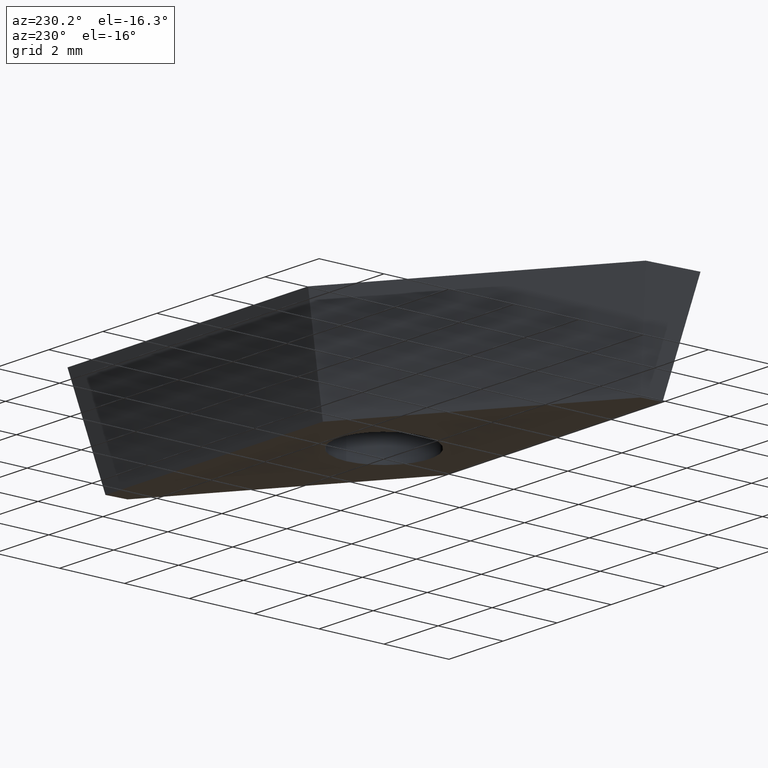
[diagram: clean part render]
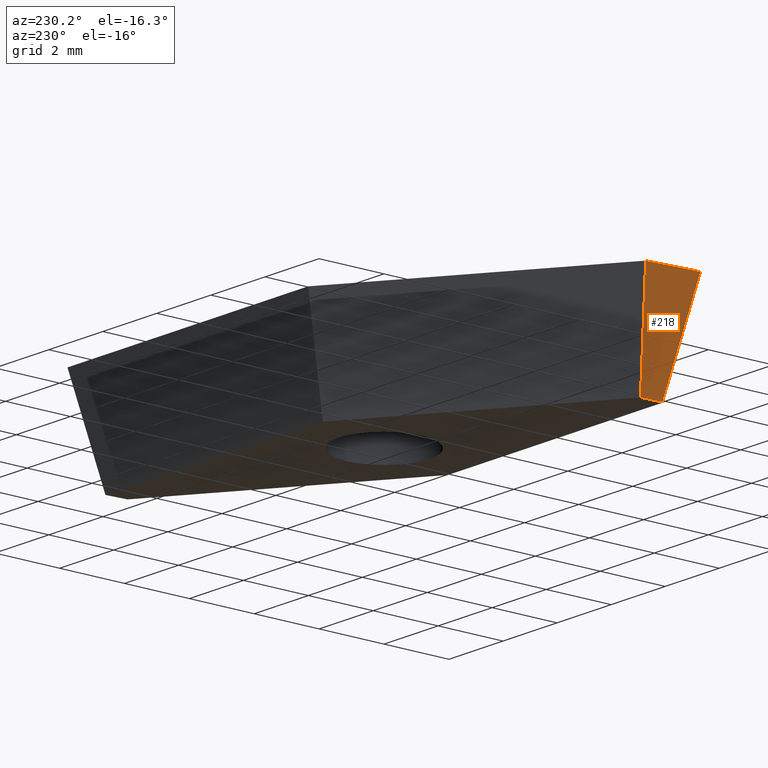
[diagram: same view with one face highlighted and labeled with its STEP entity id]
A machine part, auxiliary view. The second image highlights one B-rep face of the part: STEP entity #218.
In plain terms, the highlighted planar face has unit normal (-0.9792, 0.0685, -0.1908).
Its self-contained STEP definition (entity closure, byte-faithful):
#5 = VECTOR ( 'NONE', #65, 1000.000000000000100 ) ;
#27 = LINE ( 'NONE', #67, #5 ) ;
#30 = VECTOR ( 'NONE', #148, 1000.000000000000100 ) ;
#36 = CARTESIAN_POINT ( 'NONE',  ( -7.788289079147451900, -1.577459403657731600, 0.0000000000000000000 ) ) ;
#44 = LINE ( 'NONE', #90, #30 ) ;
#65 = DIRECTION ( 'NONE',  ( -0.1832382521941805800, 0.1036712150141736000, 0.9775868360970839700 ) ) ;
#66 = VECTOR ( 'NONE', #78, 1000.000000000000000 ) ;
#67 = CARTESIAN_POINT ( 'NONE',  ( -7.788289079147451900, -1.577459403657731600, 0.0000000000000000000 ) ) ;
#76 = LINE ( 'NONE', #347, #66 ) ;
#78 = DIRECTION ( 'NONE',  ( -0.06975647374412606600, -0.9975640502598242000, -0.0000000000000000000 ) ) ;
#81 = CARTESIAN_POINT ( 'NONE',  ( -7.900000000000002100, -3.175000000000000700, 0.0000000000000000000 ) ) ;
#90 = CARTESIAN_POINT ( 'NONE',  ( -7.900000000000002100, -3.175000000000000700, 0.0000000000000000000 ) ) ;
#99 = CARTESIAN_POINT ( 'NONE',  ( -7.283376349052111300, -3.218118526079755300, -3.180000000000000200 ) ) ;
#121 = EDGE_CURVE ( 'NONE', #243, #285, #182, .T. ) ;
#126 = PLANE ( 'NONE',  #264 ) ;
#148 = DIRECTION ( 'NONE',  ( -0.2004640746510998900, -0.1869357738407769500, 0.9617011860410842300 ) ) ;
#154 = FACE_OUTER_BOUND ( 'NONE', #357, .T. ) ;
#156 = CARTESIAN_POINT ( 'NONE',  ( -7.900000000000002100, -3.175000000000000700, 0.0000000000000000000 ) ) ;
#176 = VECTOR ( 'NONE', #200, 1000.000000000000100 ) ;
#182 = LINE ( 'NONE', #99, #176 ) ;
#200 = DIRECTION ( 'NONE',  ( -0.06975647374412608000, -0.9975640502598242000, 0.0000000000000000000 ) ) ;
#202 = ORIENTED_EDGE ( 'NONE', *, *, #322, .T. ) ;
#206 = ORIENTED_EDGE ( 'NONE', *, *, #121, .T. ) ;
#218 = ADVANCED_FACE ( 'NONE', ( #154 ), #126, .T. ) ;
#243 = VERTEX_POINT ( 'NONE', #300 ) ;
#251 = ORIENTED_EDGE ( 'NONE', *, *, #286, .F. ) ;
#264 = AXIS2_PLACEMENT_3D ( 'NONE', #156, #338, #274 ) ;
#265 = ORIENTED_EDGE ( 'NONE', *, *, #332, .F. ) ;
#274 = DIRECTION ( 'NONE',  ( -0.1912579077465619300, 0.0000000000000000000, 0.9815398171874677400 ) ) ;
#285 = VERTEX_POINT ( 'NONE', #298 ) ;
#286 = EDGE_CURVE ( 'NONE', #294, #327, #76, .T. ) ;
#294 = VERTEX_POINT ( 'NONE', #36 ) ;
#298 = CARTESIAN_POINT ( 'NONE',  ( -7.237137390861799500, -2.556870616942054300, -3.180000000000000200 ) ) ;
#300 = CARTESIAN_POINT ( 'NONE',  ( -7.192231910145610900, -1.914692324122642800, -3.180000000000000200 ) ) ;
#322 = EDGE_CURVE ( 'NONE', #285, #327, #44, .T. ) ;
#327 = VERTEX_POINT ( 'NONE', #81 ) ;
#332 = EDGE_CURVE ( 'NONE', #243, #294, #27, .T. ) ;
#338 = DIRECTION ( 'NONE',  ( -0.9792359889651950400, 0.06847485084868740200, -0.1908089953765452800 ) ) ;
#347 = CARTESIAN_POINT ( 'NONE',  ( -7.900000000000002100, -3.175000000000000700, 0.0000000000000000000 ) ) ;
#357 = EDGE_LOOP ( 'NONE', ( #251, #265, #206, #202 ) ) ;